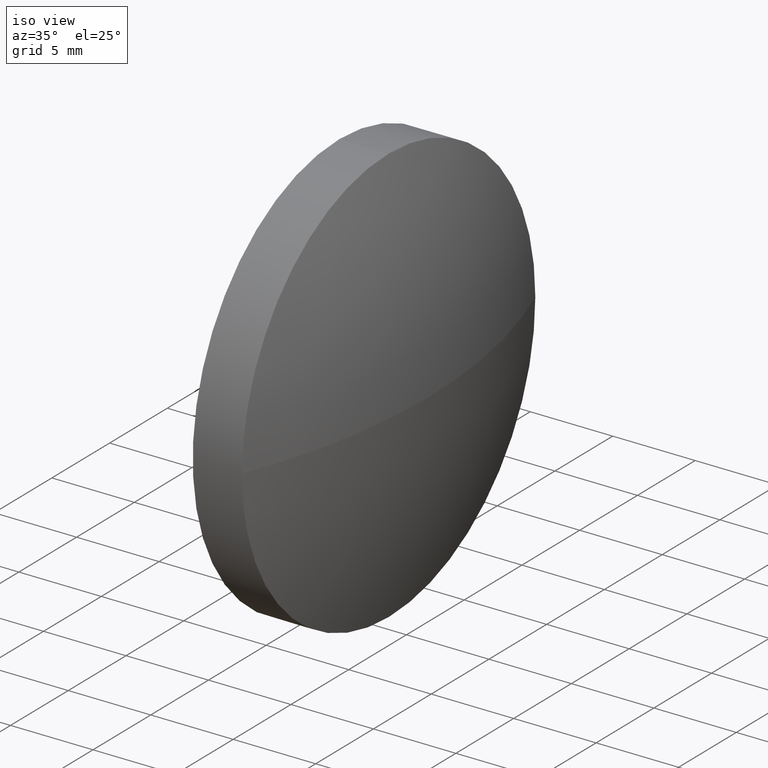
[diagram: clean part render]
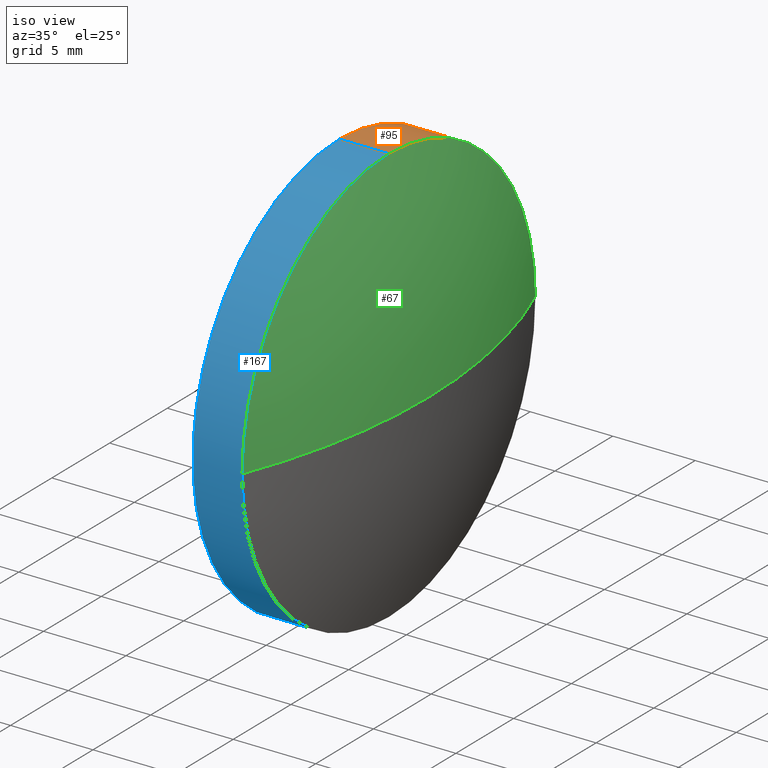
[diagram: same view with three faces highlighted in distinct colors, each labeled with its STEP entity id]
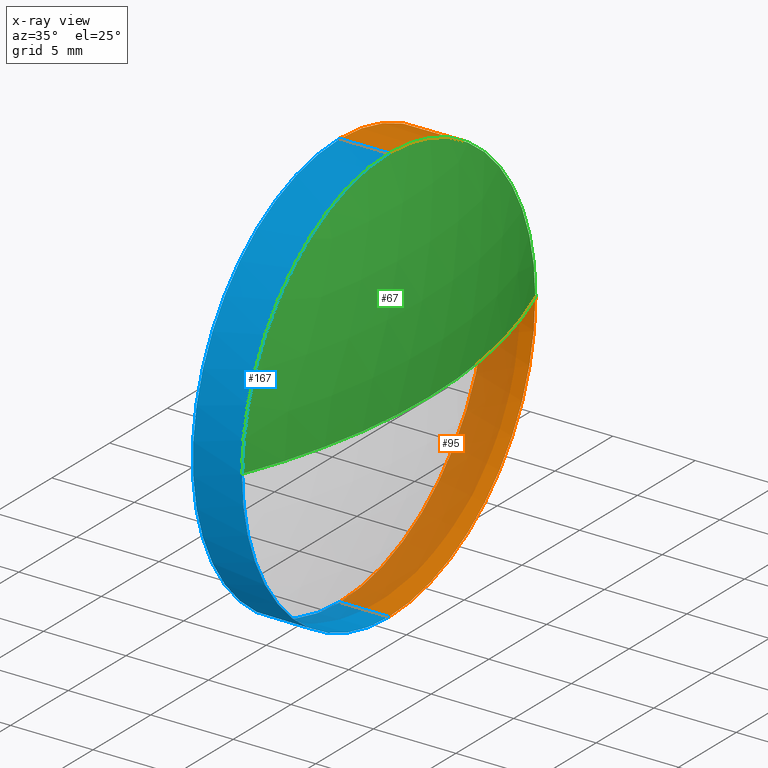
[diagram: x-ray of the same camera — body ghosted, the three highlighted faces saturated]
A machine part, iso view with three faces highlighted in distinct colors.
The next image is the same camera in x-ray (body ghosted, the three faces saturated) — at least one of them is partly hidden behind the body in this view.
Their STEP definitions:

[orange] entity #95 — the highlighted cylindrical surface (partial cylindrical patch) has radius 12.7 mm, axis along (-1, -0, -0).
#1 = CARTESIAN_POINT ( 'NONE',  ( 110.1653732284884500, 65.23355492641219700, 0.0000000000000000000 ) ) ;
#4 = CARTESIAN_POINT ( 'NONE',  ( 110.1653732284884500, 65.23355492641219700, -12.70000000000001000 ) ) ;
#13 = LINE ( 'NONE', #4, #158 ) ;
#14 = VERTEX_POINT ( 'NONE', #19 ) ;
#15 = DIRECTION ( 'NONE',  ( -1.000000000000000000, -0.0000000000000000000, -0.0000000000000000000 ) ) ;
#16 = CARTESIAN_POINT ( 'NONE',  ( 115.7736064308381300, 65.23355492641219700, -12.70000000000000300 ) ) ;
#17 = EDGE_CURVE ( 'NONE', #52, #82, #144, .T. ) ;
#19 = CARTESIAN_POINT ( 'NONE',  ( 118.7594658620225400, 65.23355492641219700, 12.70000000000001500 ) ) ;
#26 = VERTEX_POINT ( 'NONE', #90 ) ;
#36 = CIRCLE ( 'NONE', #127, 12.70000000000001700 ) ;
#48 = CARTESIAN_POINT ( 'NONE',  ( 118.7594658620225400, 65.23355492641219700, 0.0000000000000000000 ) ) ;
#50 = DIRECTION ( 'NONE',  ( 0.0000000000000000000, 0.0000000000000000000, 1.000000000000000000 ) ) ;
#52 = VERTEX_POINT ( 'NONE', #75 ) ;
#55 = DIRECTION ( 'NONE',  ( -1.000000000000000000, -0.0000000000000000000, -0.0000000000000000000 ) ) ;
#60 = DIRECTION ( 'NONE',  ( -1.000000000000000000, -0.0000000000000000000, -0.0000000000000000000 ) ) ;
#65 = ORIENTED_EDGE ( 'NONE', *, *, #181, .T. ) ;
#72 = EDGE_LOOP ( 'NONE', ( #83, #65, #126, #138, #98 ) ) ;
#74 = CIRCLE ( 'NONE', #110, 12.70000000000000300 ) ;
#75 = CARTESIAN_POINT ( 'NONE',  ( 118.7594658620225400, 77.93355492641221400, 0.0000000000000000000 ) ) ;
#76 = DIRECTION ( 'NONE',  ( -1.000000000000000000, -0.0000000000000000000, -0.0000000000000000000 ) ) ;
#78 = CARTESIAN_POINT ( 'NONE',  ( 118.7594658620225400, 65.23355492641219700, 0.0000000000000000000 ) ) ;
#79 = DIRECTION ( 'NONE',  ( -1.000000000000000000, -0.0000000000000000000, -0.0000000000000000000 ) ) ;
#82 = VERTEX_POINT ( 'NONE', #89 ) ;
#83 = ORIENTED_EDGE ( 'NONE', *, *, #17, .T. ) ;
#89 = CARTESIAN_POINT ( 'NONE',  ( 118.7594658620225400, 65.23355492641219700, -12.70000000000001500 ) ) ;
#90 = CARTESIAN_POINT ( 'NONE',  ( 115.7736064308381300, 65.23355492641219700, 12.70000000000000300 ) ) ;
#92 = DIRECTION ( 'NONE',  ( 0.0000000000000000000, 0.0000000000000000000, 1.000000000000000000 ) ) ;
#95 = ADVANCED_FACE ( 'NONE', ( #180 ), #132, .T. ) ;
#97 = AXIS2_PLACEMENT_3D ( 'NONE', #1, #15, #119 ) ;
#98 = ORIENTED_EDGE ( 'NONE', *, *, #136, .T. ) ;
#99 = CARTESIAN_POINT ( 'NONE',  ( 110.1653732284884500, 65.23355492641219700, 12.70000000000001000 ) ) ;
#103 = CARTESIAN_POINT ( 'NONE',  ( 115.7736064308381300, 65.23355492641219700, 0.0000000000000000000 ) ) ;
#110 = AXIS2_PLACEMENT_3D ( 'NONE', #103, #79, #50 ) ;
#115 = EDGE_CURVE ( 'NONE', #14, #26, #173, .T. ) ;
#119 = DIRECTION ( 'NONE',  ( 0.0000000000000000000, 0.0000000000000000000, 1.000000000000000000 ) ) ;
#123 = EDGE_CURVE ( 'NONE', #26, #145, #74, .T. ) ;
#126 = ORIENTED_EDGE ( 'NONE', *, *, #123, .F. ) ;
#127 = AXIS2_PLACEMENT_3D ( 'NONE', #78, #163, #92 ) ;
#132 = CYLINDRICAL_SURFACE ( 'NONE', #97, 12.70000000000001000 ) ;
#136 = EDGE_CURVE ( 'NONE', #14, #52, #36, .T. ) ;
#138 = ORIENTED_EDGE ( 'NONE', *, *, #115, .F. ) ;
#142 = DIRECTION ( 'NONE',  ( 0.0000000000000000000, 0.0000000000000000000, 1.000000000000000000 ) ) ;
#144 = CIRCLE ( 'NONE', #177, 12.70000000000001700 ) ;
#145 = VERTEX_POINT ( 'NONE', #16 ) ;
#158 = VECTOR ( 'NONE', #55, 1000.000000000000000 ) ;
#163 = DIRECTION ( 'NONE',  ( -1.000000000000000000, -0.0000000000000000000, -0.0000000000000000000 ) ) ;
#173 = LINE ( 'NONE', #99, #185 ) ;
#177 = AXIS2_PLACEMENT_3D ( 'NONE', #48, #76, #142 ) ;
#180 = FACE_OUTER_BOUND ( 'NONE', #72, .T. ) ;
#181 = EDGE_CURVE ( 'NONE', #82, #145, #13, .T. ) ;
#185 = VECTOR ( 'NONE', #60, 1000.000000000000000 ) ;

[blue] entity #167 — the highlighted cylindrical surface (partial cylindrical patch) has radius 12.7 mm, axis along (-1, -0, -0).
#4 = CARTESIAN_POINT ( 'NONE',  ( 110.1653732284884500, 65.23355492641219700, -12.70000000000001000 ) ) ;
#7 = EDGE_CURVE ( 'NONE', #125, #14, #66, .T. ) ;
#11 = AXIS2_PLACEMENT_3D ( 'NONE', #176, #23, #80 ) ;
#13 = LINE ( 'NONE', #4, #158 ) ;
#14 = VERTEX_POINT ( 'NONE', #19 ) ;
#16 = CARTESIAN_POINT ( 'NONE',  ( 115.7736064308381300, 65.23355492641219700, -12.70000000000000300 ) ) ;
#19 = CARTESIAN_POINT ( 'NONE',  ( 118.7594658620225400, 65.23355492641219700, 12.70000000000001500 ) ) ;
#21 = DIRECTION ( 'NONE',  ( -1.000000000000000000, -0.0000000000000000000, -0.0000000000000000000 ) ) ;
#23 = DIRECTION ( 'NONE',  ( -1.000000000000000000, -0.0000000000000000000, -0.0000000000000000000 ) ) ;
#26 = VERTEX_POINT ( 'NONE', #90 ) ;
#32 = CARTESIAN_POINT ( 'NONE',  ( 118.7594658620225400, 52.53355492641217900, -1.555301434917140800E-015 ) ) ;
#33 = ORIENTED_EDGE ( 'NONE', *, *, #181, .F. ) ;
#40 = ORIENTED_EDGE ( 'NONE', *, *, #162, .T. ) ;
#41 = ORIENTED_EDGE ( 'NONE', *, *, #115, .T. ) ;
#51 = ORIENTED_EDGE ( 'NONE', *, *, #140, .F. ) ;
#55 = DIRECTION ( 'NONE',  ( -1.000000000000000000, -0.0000000000000000000, -0.0000000000000000000 ) ) ;
#57 = DIRECTION ( 'NONE',  ( 0.0000000000000000000, 0.0000000000000000000, 1.000000000000000000 ) ) ;
#60 = DIRECTION ( 'NONE',  ( -1.000000000000000000, -0.0000000000000000000, -0.0000000000000000000 ) ) ;
#61 = DIRECTION ( 'NONE',  ( 0.0000000000000000000, 0.0000000000000000000, 1.000000000000000000 ) ) ;
#63 = CARTESIAN_POINT ( 'NONE',  ( 110.1653732284884500, 65.23355492641219700, 0.0000000000000000000 ) ) ;
#66 = CIRCLE ( 'NONE', #149, 12.70000000000001700 ) ;
#80 = DIRECTION ( 'NONE',  ( 0.0000000000000000000, 0.0000000000000000000, 1.000000000000000000 ) ) ;
#82 = VERTEX_POINT ( 'NONE', #89 ) ;
#89 = CARTESIAN_POINT ( 'NONE',  ( 118.7594658620225400, 65.23355492641219700, -12.70000000000001500 ) ) ;
#90 = CARTESIAN_POINT ( 'NONE',  ( 115.7736064308381300, 65.23355492641219700, 12.70000000000000300 ) ) ;
#93 = DIRECTION ( 'NONE',  ( -1.000000000000000000, -0.0000000000000000000, -0.0000000000000000000 ) ) ;
#99 = CARTESIAN_POINT ( 'NONE',  ( 110.1653732284884500, 65.23355492641219700, 12.70000000000001000 ) ) ;
#105 = CARTESIAN_POINT ( 'NONE',  ( 118.7594658620225400, 65.23355492641219700, 0.0000000000000000000 ) ) ;
#115 = EDGE_CURVE ( 'NONE', #14, #26, #173, .T. ) ;
#117 = DIRECTION ( 'NONE',  ( -1.000000000000000000, -0.0000000000000000000, -0.0000000000000000000 ) ) ;
#125 = VERTEX_POINT ( 'NONE', #32 ) ;
#131 = DIRECTION ( 'NONE',  ( 0.0000000000000000000, 0.0000000000000000000, 1.000000000000000000 ) ) ;
#140 = EDGE_CURVE ( 'NONE', #145, #26, #183, .T. ) ;
#141 = EDGE_LOOP ( 'NONE', ( #33, #40, #170, #41, #51 ) ) ;
#145 = VERTEX_POINT ( 'NONE', #16 ) ;
#146 = CIRCLE ( 'NONE', #151, 12.70000000000001700 ) ;
#149 = AXIS2_PLACEMENT_3D ( 'NONE', #174, #117, #57 ) ;
#150 = FACE_OUTER_BOUND ( 'NONE', #141, .T. ) ;
#151 = AXIS2_PLACEMENT_3D ( 'NONE', #105, #21, #131 ) ;
#158 = VECTOR ( 'NONE', #55, 1000.000000000000000 ) ;
#159 = AXIS2_PLACEMENT_3D ( 'NONE', #63, #93, #61 ) ;
#162 = EDGE_CURVE ( 'NONE', #82, #125, #146, .T. ) ;
#167 = ADVANCED_FACE ( 'NONE', ( #150 ), #168, .T. ) ;
#168 = CYLINDRICAL_SURFACE ( 'NONE', #159, 12.70000000000001000 ) ;
#170 = ORIENTED_EDGE ( 'NONE', *, *, #7, .T. ) ;
#173 = LINE ( 'NONE', #99, #185 ) ;
#174 = CARTESIAN_POINT ( 'NONE',  ( 118.7594658620225400, 65.23355492641219700, 0.0000000000000000000 ) ) ;
#176 = CARTESIAN_POINT ( 'NONE',  ( 115.7736064308381300, 65.23355492641219700, 0.0000000000000000000 ) ) ;
#181 = EDGE_CURVE ( 'NONE', #82, #145, #13, .T. ) ;
#183 = CIRCLE ( 'NONE', #11, 12.70000000000000300 ) ;
#185 = VECTOR ( 'NONE', #60, 1000.000000000000000 ) ;

[green] entity #67 — the highlighted spherical surface has radius 34.506 mm.
#7 = EDGE_CURVE ( 'NONE', #125, #14, #66, .T. ) ;
#9 = AXIS2_PLACEMENT_3D ( 'NONE', #106, #129, #49 ) ;
#14 = VERTEX_POINT ( 'NONE', #19 ) ;
#19 = CARTESIAN_POINT ( 'NONE',  ( 118.7594658620225400, 65.23355492641219700, 12.70000000000001500 ) ) ;
#32 = CARTESIAN_POINT ( 'NONE',  ( 118.7594658620225400, 52.53355492641217900, -1.555301434917140800E-015 ) ) ;
#35 = AXIS2_PLACEMENT_3D ( 'NONE', #161, #45, #73 ) ;
#36 = CIRCLE ( 'NONE', #127, 12.70000000000001700 ) ;
#45 = DIRECTION ( 'NONE',  ( -0.0000000000000000000, 0.0000000000000000000, -1.000000000000000000 ) ) ;
#49 = DIRECTION ( 'NONE',  ( 0.0000000000000000000, 1.000000000000000000, 1.224646799147353200E-016 ) ) ;
#52 = VERTEX_POINT ( 'NONE', #75 ) ;
#57 = DIRECTION ( 'NONE',  ( 0.0000000000000000000, 0.0000000000000000000, 1.000000000000000000 ) ) ;
#62 = ORIENTED_EDGE ( 'NONE', *, *, #7, .F. ) ;
#64 = DIRECTION ( 'NONE',  ( -0.0000000000000000000, 0.0000000000000000000, 1.000000000000000000 ) ) ;
#66 = CIRCLE ( 'NONE', #149, 12.70000000000001700 ) ;
#67 = ADVANCED_FACE ( 'NONE', ( #102 ), #77, .T. ) ;
#73 = DIRECTION ( 'NONE',  ( 0.0000000000000000000, 1.000000000000000000, 0.0000000000000000000 ) ) ;
#75 = CARTESIAN_POINT ( 'NONE',  ( 118.7594658620225400, 77.93355492641221400, 0.0000000000000000000 ) ) ;
#77 = SPHERICAL_SURFACE ( 'NONE', #35, 34.50600000000000700 ) ;
#78 = CARTESIAN_POINT ( 'NONE',  ( 118.7594658620225400, 65.23355492641219700, 0.0000000000000000000 ) ) ;
#92 = DIRECTION ( 'NONE',  ( 0.0000000000000000000, 0.0000000000000000000, 1.000000000000000000 ) ) ;
#100 = ORIENTED_EDGE ( 'NONE', *, *, #154, .F. ) ;
#102 = FACE_OUTER_BOUND ( 'NONE', #134, .T. ) ;
#106 = CARTESIAN_POINT ( 'NONE',  ( 86.67560643083813000, 65.23355492641219700, 0.0000000000000000000 ) ) ;
#107 = CIRCLE ( 'NONE', #9, 34.50600000000000700 ) ;
#108 = ORIENTED_EDGE ( 'NONE', *, *, #136, .F. ) ;
#111 = CIRCLE ( 'NONE', #186, 34.50600000000000700 ) ;
#116 = CARTESIAN_POINT ( 'NONE',  ( 121.1816064308381400, 65.23355492641219700, 0.0000000000000000000 ) ) ;
#117 = DIRECTION ( 'NONE',  ( -1.000000000000000000, -0.0000000000000000000, -0.0000000000000000000 ) ) ;
#120 = VERTEX_POINT ( 'NONE', #116 ) ;
#125 = VERTEX_POINT ( 'NONE', #32 ) ;
#127 = AXIS2_PLACEMENT_3D ( 'NONE', #78, #163, #92 ) ;
#128 = EDGE_CURVE ( 'NONE', #120, #52, #111, .T. ) ;
#129 = DIRECTION ( 'NONE',  ( 0.0000000000000000000, 1.224646799147353200E-016, -1.000000000000000000 ) ) ;
#134 = EDGE_LOOP ( 'NONE', ( #100, #182, #108, #62 ) ) ;
#136 = EDGE_CURVE ( 'NONE', #14, #52, #36, .T. ) ;
#147 = CARTESIAN_POINT ( 'NONE',  ( 86.67560643083813000, 65.23355492641219700, 0.0000000000000000000 ) ) ;
#149 = AXIS2_PLACEMENT_3D ( 'NONE', #174, #117, #57 ) ;
#154 = EDGE_CURVE ( 'NONE', #120, #125, #107, .T. ) ;
#161 = CARTESIAN_POINT ( 'NONE',  ( 86.67560643083813000, 65.23355492641219700, 0.0000000000000000000 ) ) ;
#163 = DIRECTION ( 'NONE',  ( -1.000000000000000000, -0.0000000000000000000, -0.0000000000000000000 ) ) ;
#166 = DIRECTION ( 'NONE',  ( 1.000000000000000000, 0.0000000000000000000, 0.0000000000000000000 ) ) ;
#174 = CARTESIAN_POINT ( 'NONE',  ( 118.7594658620225400, 65.23355492641219700, 0.0000000000000000000 ) ) ;
#182 = ORIENTED_EDGE ( 'NONE', *, *, #128, .T. ) ;
#186 = AXIS2_PLACEMENT_3D ( 'NONE', #147, #64, #166 ) ;